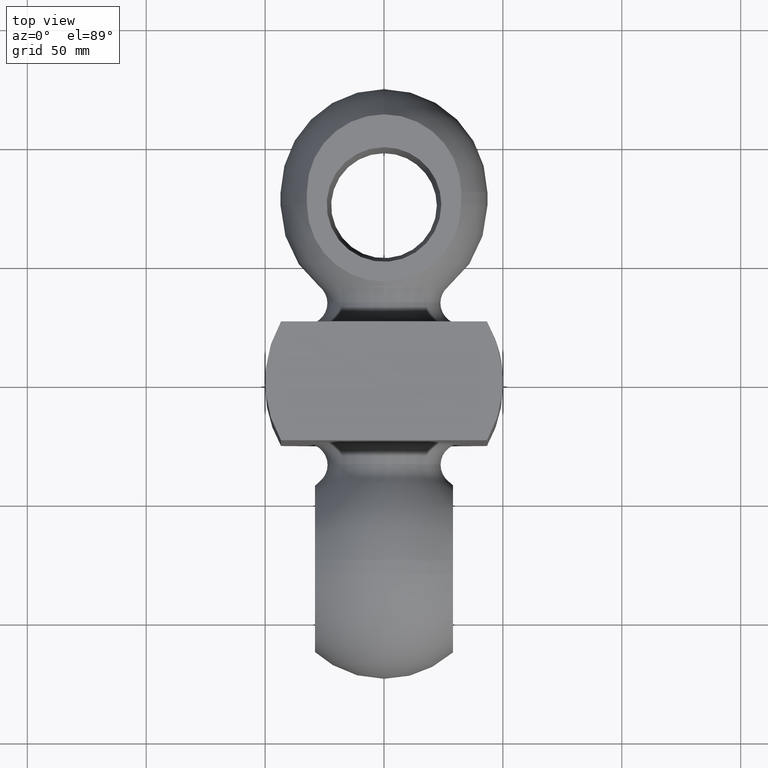
[diagram: clean part render]
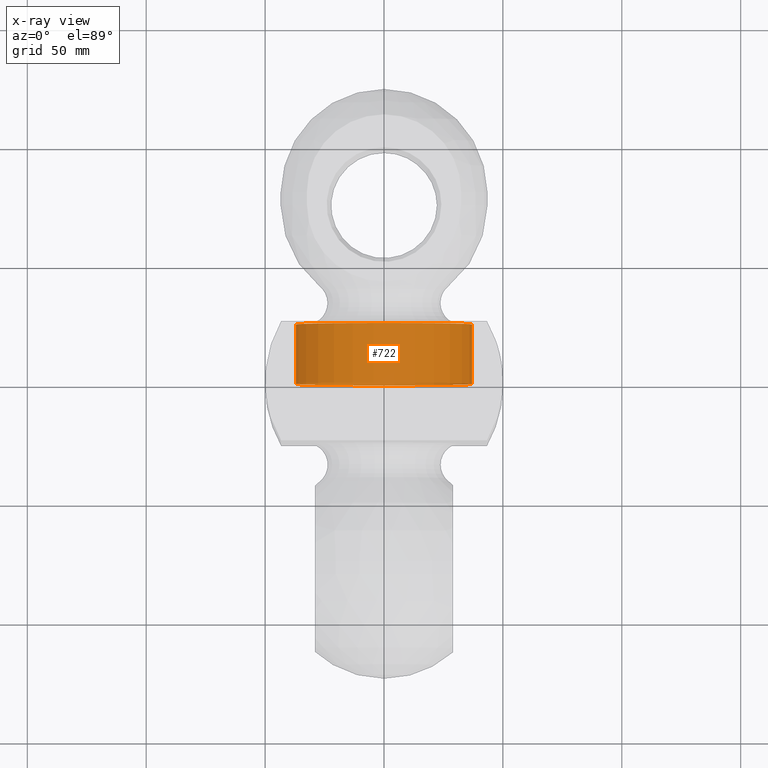
[diagram: x-ray — body ghosted, one internal face saturated and labeled with its STEP entity id]
A machine part, top view, then the same camera in x-ray: the body is ghosted and one INTERNAL B-rep face — a face not visible from any outside direction — is saturated and labeled: STEP entity #722.
In plain terms, the highlighted cylindrical surface (bore or boss wall) has radius 37 mm, axis along (0, 1, 0).
Its self-contained STEP definition (entity closure, byte-faithful):
#114=FACE_OUTER_BOUND('',#163,.T.);
#163=EDGE_LOOP('',(#661,#662,#663,#664));
#202=LINE('',#1597,#226);
#226=VECTOR('',#1105,37.);
#287=CIRCLE('',#860,37.);
#290=CIRCLE('',#866,37.);
#357=VERTEX_POINT('',#1588);
#359=VERTEX_POINT('',#1596);
#457=EDGE_CURVE('',#357,#357,#287,.T.);
#460=EDGE_CURVE('',#357,#359,#202,.T.);
#461=EDGE_CURVE('',#359,#359,#290,.T.);
#661=ORIENTED_EDGE('',*,*,#457,.F.);
#662=ORIENTED_EDGE('',*,*,#460,.T.);
#663=ORIENTED_EDGE('',*,*,#461,.T.);
#664=ORIENTED_EDGE('',*,*,#460,.F.);
#680=CYLINDRICAL_SURFACE('',#865,37.);
#722=ADVANCED_FACE('',(#114),#680,.T.);
#860=AXIS2_PLACEMENT_3D('',#1589,#1093,#1094);
#865=AXIS2_PLACEMENT_3D('',#1595,#1103,#1104);
#866=AXIS2_PLACEMENT_3D('',#1598,#1106,#1107);
#1093=DIRECTION('center_axis',(0.,1.,0.));
#1094=DIRECTION('ref_axis',(1.,0.,0.));
#1103=DIRECTION('center_axis',(0.,1.,0.));
#1104=DIRECTION('ref_axis',(1.,0.,0.));
#1105=DIRECTION('',(0.,-1.,0.));
#1106=DIRECTION('center_axis',(0.,1.,0.));
#1107=DIRECTION('ref_axis',(1.,0.,0.));
#1588=CARTESIAN_POINT('',(-37.,25.,4.53119315684521E-15));
#1589=CARTESIAN_POINT('Origin',(0.,25.,0.));
#1595=CARTESIAN_POINT('Origin',(0.,0.,0.));
#1596=CARTESIAN_POINT('',(-37.,0.,4.53119315684521E-15));
#1597=CARTESIAN_POINT('',(-37.,0.,4.53119315684521E-15));
#1598=CARTESIAN_POINT('Origin',(0.,0.,0.));